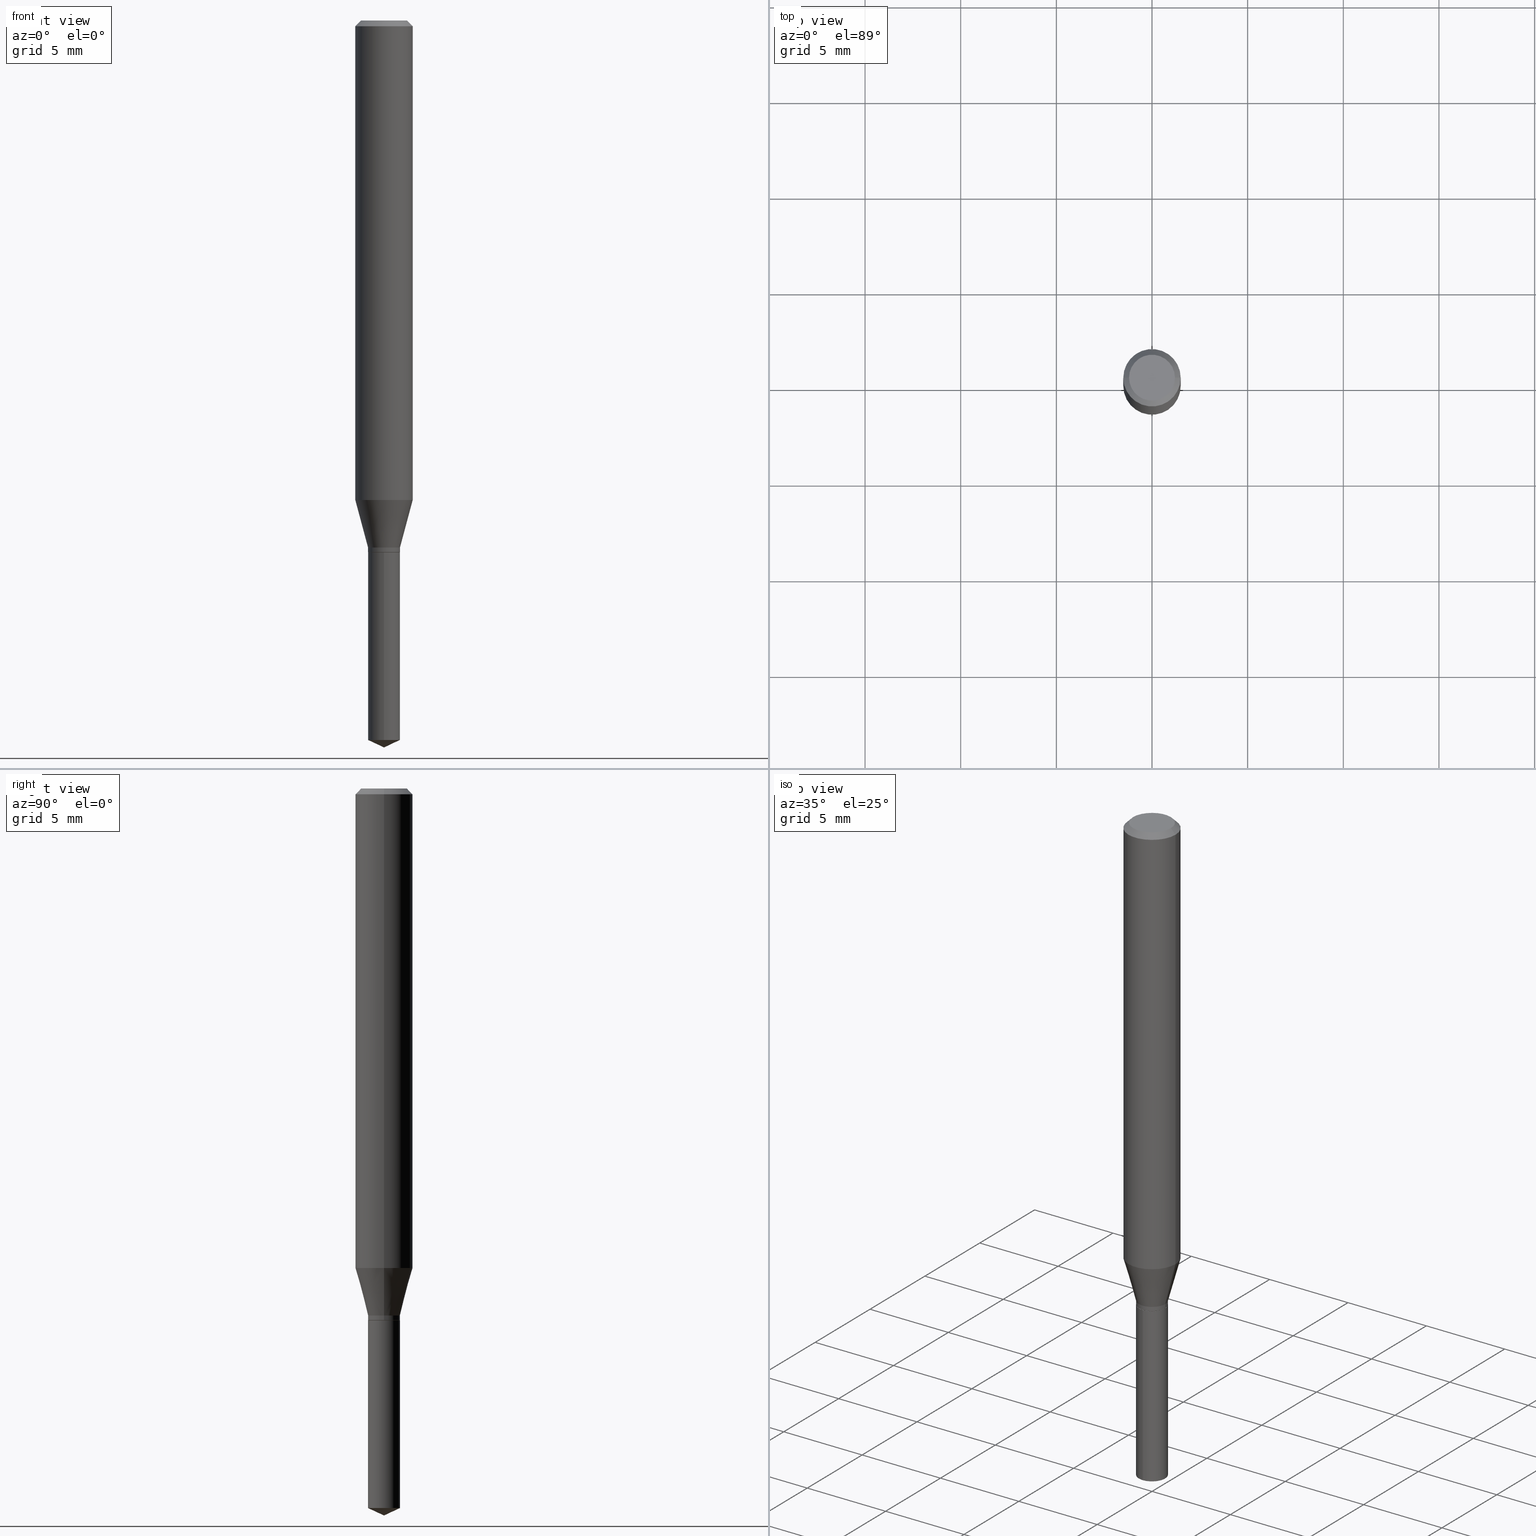
[diagram: canonical four-view strip — front | top / right | iso, engineering-drawing reading convention]
A machine part, canonical four-view strip (front | top / right | iso — engineering-drawing reading convention). The complete STEP part file that produces these views, byte-faithful:
ISO-10303-21;
HEADER;
FILE_DESCRIPTION (( 'STEP AP203' ),
    '1' );
FILE_NAME ('07561.STEP',
    '2024-04-23T22:58:41',
    ( '' ),
    ( '' ),
    'SwSTEP 2.0',
    'SolidWorks 2023',
    '' );
FILE_SCHEMA (( 'CONFIG_CONTROL_DESIGN' ));
ENDSEC;

DATA;
#1 = EDGE_CURVE ( 'NONE', #212, #290, #455, .T. ) ;
#2 = DIRECTION ( 'NONE',  ( 1.000000000000000000, -6.982962677686266711E-15, 4.876176775795935793E-29 ) ) ;
#3 = DIRECTION ( 'NONE',  ( 1.000000000000000000, -6.982962677686272233E-15, 0.000000000000000000 ) ) ;
#4 = CARTESIAN_POINT ( 'NONE',  ( -9.261968845786000133E-28, 1.322362114038720264E-13, 37.87397874015748300 ) ) ;
#5 = DIRECTION ( 'NONE',  ( 0.000000000000000000, 0.000000000000000000, 1.000000000000000000 ) ) ;
#6 = CARTESIAN_POINT ( 'NONE',  ( 0.000000000000000000, 0.000000000000000000, 0.000000000000000000 ) ) ;
#7 = AXIS2_PLACEMENT_3D ( 'NONE', #152, #329, #460 ) ;
#8 = DIRECTION ( 'NONE',  ( -2.445470214571802396E-29, 3.491479321953280158E-15, 1.000000000000000000 ) ) ;
#9 = DATE_AND_TIME ( #465, #24 ) ;
#10 = CC_DESIGN_PERSON_AND_ORGANIZATION_ASSIGNMENT ( #385, #190, ( #342 ) ) ;
#11 = CARTESIAN_POINT ( 'NONE',  ( 2.652355467188399034E-29, -3.786860660109275425E-15, -1.084600000000000009 ) ) ;
#12 = CARTESIAN_POINT ( 'NONE',  ( -0.05904999999999999832, -1.323773988566005771E-15, -0.01181000000000007218 ) ) ;
#13 = PLANE ( 'NONE',  #422 ) ;
#14 = LINE ( 'NONE', #320, #268 ) ;
#15 = FACE_OUTER_BOUND ( 'NONE', #134, .T. ) ;
#16 = VECTOR ( 'NONE', #467, 39.37007874015748143 ) ;
#17 = DIRECTION ( 'NONE',  ( 1.000000000000000000, -6.982962677686266711E-15, 4.876185090822587894E-29 ) ) ;
#18 = DIRECTION ( 'NONE',  ( 1.000000000000000000, -6.982962677686272233E-15, 0.000000000000000000 ) ) ;
#19 = EDGE_CURVE ( 'NONE', #105, #144, #183, .T. ) ;
#20 = PLANE ( 'NONE',  #220 ) ;
#21 = APPROVAL_ROLE ( '' ) ;
#22 = VERTEX_POINT ( 'NONE', #410 ) ;
#23 = VERTEX_POINT ( 'NONE', #332 ) ;
#24 = LOCAL_TIME ( 18, 58, 41.00000000000000000, #308 ) ;
#25 = EDGE_CURVE ( 'NONE', #66, #22, #411, .T. ) ;
#26 = VERTEX_POINT ( 'NONE', #106 ) ;
#27 = CARTESIAN_POINT ( 'NONE',  ( 2.888098660104664204E-31, -4.123439461173780263E-17, -0.01181000000000007218 ) ) ;
#28 = ORIENTED_EDGE ( 'NONE', *, *, #324, .F. ) ;
#29 = CLOSED_SHELL ( 'NONE', ( #350, #272, #234, #36, #447 ) ) ;
#30 = AXIS2_PLACEMENT_3D ( 'NONE', #97, #281, #82 ) ;
#31 = EDGE_LOOP ( 'NONE', ( #218, #375, #164 ) ) ;
#32 = EDGE_CURVE ( 'NONE', #166, #144, #306, .T. ) ;
#33 = ORIENTED_EDGE ( 'NONE', *, *, #303, .F. ) ;
#34 = EDGE_LOOP ( 'NONE', ( #451, #173 ) ) ;
#35 = VECTOR ( 'NONE', #424, 39.37007874015748143 ) ;
#36 = ADVANCED_FACE ( 'NONE', ( #415 ), #146, .T. ) ;
#37 = ORIENTED_EDGE ( 'NONE', *, *, #444, .F. ) ;
#38 = CARTESIAN_POINT ( 'NONE',  ( 2.334132886972290313E-16, 0.03284999999999482084, -1.480781793429608140 ) ) ;
#39 = PERSON ( 'UNSPECIFIED', 'UNSPECIFIED', 'UNSPECIFIED', ('UNSPECIFIED'), ('UNSPECIFIED'), ('UNSPECIFIED') ) ;
#40 = CARTESIAN_POINT ( 'NONE',  ( -9.261968845786000133E-28, 1.322362114038720264E-13, 37.87397874015748300 ) ) ;
#41 = PERSON_AND_ORGANIZATION ( #39, #108 ) ;
#42 = CARTESIAN_POINT ( 'NONE',  ( 0.03284999999999999726, -2.293903239619938520E-16, 1.601824070848965135E-30 ) ) ;
#43 = EDGE_CURVE ( 'NONE', #66, #371, #267, .T. ) ;
#44 = DIRECTION ( 'NONE',  ( 1.000000000000000000, -6.982962677686266711E-15, 0.000000000000000000 ) ) ;
#45 = DIRECTION ( 'NONE',  ( -2.445468806185136597E-29, 3.491481338843145583E-15, 1.000000000000000000 ) ) ;
#46 = AXIS2_PLACEMENT_3D ( 'NONE', #347, #151, #310 ) ;
#47 = SECURITY_CLASSIFICATION ( '', '', #476 ) ;
#48 = DIRECTION ( 'NONE',  ( -2.445468806185136597E-29, 3.491481338843145583E-15, 1.000000000000000000 ) ) ;
#49 = APPROVAL_DATE_TIME ( #83, #90 ) ;
#50 = DIRECTION ( 'NONE',  ( -2.445468806185136597E-29, 3.491481338843145583E-15, 1.000000000000000000 ) ) ;
#51 = ADVANCED_BREP_SHAPE_REPRESENTATION ( '07561', ( #244, #409, #262 ), #159 ) ;
#52 = FACE_OUTER_BOUND ( 'NONE', #285, .T. ) ;
#53 = FACE_OUTER_BOUND ( 'NONE', #250, .T. ) ;
#54 = CARTESIAN_POINT ( 'NONE',  ( 2.413238184763595651E-29, -3.445464553452954771E-15, -0.9868202688416950474 ) ) ;
#55 = CC_DESIGN_DATE_AND_TIME_ASSIGNMENT ( #436, #92, ( #47 ) ) ;
#56 = AXIS2_PLACEMENT_3D ( 'NONE', #125, #354, #87 ) ;
#57 = LINE ( 'NONE', #391, #339 ) ;
#58 = ORIENTED_EDGE ( 'NONE', *, *, #309, .F. ) ;
#59 = ORIENTED_EDGE ( 'NONE', *, *, #470, .F. ) ;
#60 = CC_DESIGN_PERSON_AND_ORGANIZATION_ASSIGNMENT ( #194, #287, ( #457 ) ) ;
#61 = EDGE_LOOP ( 'NONE', ( #334, #142, #404, #453 ) ) ;
#62 = AXIS2_PLACEMENT_3D ( 'NONE', #4, #216, #168 ) ;
#63 = ORIENTED_EDGE ( 'NONE', *, *, #297, .T. ) ;
#64 = ORIENTED_EDGE ( 'NONE', *, *, #408, .F. ) ;
#65 = DIRECTION ( 'NONE',  ( -6.982962677686267499E-15, -1.000000000000000000, 3.520397390770469253E-15 ) ) ;
#66 = VERTEX_POINT ( 'NONE', #38 ) ;
#67 = EDGE_CURVE ( 'NONE', #205, #290, #233, .T. ) ;
#68 = VECTOR ( 'NONE', #421, 39.37007874015748143 ) ;
#69 = CARTESIAN_POINT ( 'NONE',  ( 2.676565608369632355E-29, -3.821426325363822773E-15, -1.094500000000000028 ) ) ;
#70 = CARTESIAN_POINT ( 'NONE',  ( 0.05904999999999999832, -4.463468013801466955E-16, -0.01181000000000007218 ) ) ;
#71 = DIRECTION ( 'NONE',  ( -0.2588190451025211836, 5.211531920934547886E-15, 0.9659258262890679791 ) ) ;
#72 = ORIENTED_EDGE ( 'NONE', *, *, #1, .T. ) ;
#73 = ADVANCED_FACE ( 'NONE', ( #78 ), #13, .F. ) ;
#74 = EDGE_LOOP ( 'NONE', ( #328, #224, #446, #28 ) ) ;
#75 = VECTOR ( 'NONE', #490, 39.37007874015748143 ) ;
#76 = CIRCLE ( 'NONE', #441, 0.03284999999999999726 ) ;
#77 = DIRECTION ( 'NONE',  ( -2.445468806185136597E-29, 3.491481338843145583E-15, 1.000000000000000000 ) ) ;
#78 = FACE_OUTER_BOUND ( 'NONE', #34, .T. ) ;
#79 = DIRECTION ( 'NONE',  ( -2.445468806185136877E-29, 3.491481338843145188E-15, 1.000000000000000000 ) ) ;
#80 = DIRECTION ( 'NONE',  ( 2.438088387897960049E-29, -3.491481338843145188E-15, -1.000000000000000000 ) ) ;
#81 = APPROVAL_DATE_TIME ( #323, #461 ) ;
#82 = DIRECTION ( 'NONE',  ( -6.982962677686266711E-15, -1.000000000000000000, 4.158063917297204420E-15 ) ) ;
#83 = DATE_AND_TIME ( #428, #269 ) ;
#84 = CYLINDRICAL_SURFACE ( 'NONE', #473, 0.05905000000000006077 ) ;
#85 = AXIS2_PLACEMENT_3D ( 'NONE', #313, #45, #3 ) ;
#86 = CARTESIAN_POINT ( 'NONE',  ( -0.05904999999999999832, 3.711095515056362547E-16, -0.01181000000000007218 ) ) ;
#87 = DIRECTION ( 'NONE',  ( 1.000000000000000000, -6.982962677686273021E-15, 0.000000000000000000 ) ) ;
#88 = DIRECTION ( 'NONE',  ( 1.000000000000000000, -6.982962677686273021E-15, 0.000000000000000000 ) ) ;
#89 = APPROVAL_STATUS ( 'not_yet_approved' ) ;
#90 = APPROVAL ( #274, 'UNSPECIFIED' ) ;
#91 = DIRECTION ( 'NONE',  ( 1.000000000000000000, -6.982962677686273021E-15, 0.000000000000000000 ) ) ;
#92 = DATE_TIME_ROLE ( 'classification_date' ) ;
#93 = AXIS2_PLACEMENT_3D ( 'NONE', #187, #316, #118 ) ;
#94 = CIRCLE ( 'NONE', #340, 0.03234999999999999681 ) ;
#95 = ORIENTED_EDGE ( 'NONE', *, *, #252, .F. ) ;
#96 = LOCAL_TIME ( 18, 58, 41.00000000000000000, #284 ) ;
#97 = CARTESIAN_POINT ( 'NONE',  ( 2.676565608369631794E-29, -3.821426325363822773E-15, -1.094499999999999806 ) ) ;
#98 = ORIENTED_EDGE ( 'NONE', *, *, #365, .T. ) ;
#99 = ADVANCED_FACE ( 'NONE', ( #15 ), #393, .T. ) ;
#100 = ORIENTED_EDGE ( 'NONE', *, *, #25, .T. ) ;
#101 = ORIENTED_EDGE ( 'NONE', *, *, #67, .T. ) ;
#102 = VERTEX_POINT ( 'NONE', #121 ) ;
#103 = APPLICATION_CONTEXT ( 'configuration controlled 3d designs of mechanical parts and assemblies' ) ;
#104 = ADVANCED_FACE ( 'NONE', ( #227 ), #277, .T. ) ;
#105 = VERTEX_POINT ( 'NONE', #357 ) ;
#106 = CARTESIAN_POINT ( 'NONE',  ( -0.04724000000000000421, 3.504923541997677355E-16, -3.380025165670481712E-19 ) ) ;
#107 = VECTOR ( 'NONE', #79, 39.37007874015748143 ) ;
#108 = ORGANIZATION ( 'UNSPECIFIED', 'UNSPECIFIED', '' ) ;
#109 = DIRECTION ( 'NONE',  ( -6.982962677686266711E-15, -1.000000000000000000, 4.158063917297204420E-15 ) ) ;
#110 = PRODUCT_DEFINITION ( 'UNKNOWN', '', #457, #215 ) ;
#111 = ORIENTED_EDGE ( 'NONE', *, *, #43, .T. ) ;
#112 =( NAMED_UNIT ( * ) SI_UNIT ( $, .STERADIAN. ) SOLID_ANGLE_UNIT ( ) );
#113 = DIRECTION ( 'NONE',  ( 1.000000000000000000, -6.982962677686265922E-15, 4.876176775795935793E-29 ) ) ;
#114 = AXIS2_PLACEMENT_3D ( 'NONE', #317, #437, #91 ) ;
#115 = FACE_OUTER_BOUND ( 'NONE', #214, .T. ) ;
#116 = LINE ( 'NONE', #221, #107 ) ;
#117 = CARTESIAN_POINT ( 'NONE',  ( -0.03284999999999999726, 2.334132886971928916E-16, -1.615870177148736620E-30 ) ) ;
#118 = DIRECTION ( 'NONE',  ( 1.000000000000000000, -6.982962677686266711E-15, 4.876176775795936914E-29 ) ) ;
#119 = DIRECTION ( 'NONE',  ( -6.982962677686266711E-15, -1.000000000000000000, 0.000000000000000000 ) ) ;
#120 = LENGTH_MEASURE_WITH_UNIT ( LENGTH_MEASURE( 0.02539999999999999897 ), #232 );
#121 = CARTESIAN_POINT ( 'NONE',  ( -0.03284999999999999726, -3.569857333704645111E-15, -1.084600000000000009 ) ) ;
#122 = CARTESIAN_POINT ( 'NONE',  ( 2.413238184763595651E-29, -3.445464553452954771E-15, -0.9868202688416950474 ) ) ;
#123 = CARTESIAN_POINT ( 'NONE',  ( 0.000000000000000000, 0.000000000000000000, 0.000000000000000000 ) ) ;
#124 = VECTOR ( 'NONE', #180, 39.37007874015748143 ) ;
#125 = CARTESIAN_POINT ( 'NONE',  ( 2.652355467188399034E-29, -3.786860660109275425E-15, -1.084600000000000009 ) ) ;
#126 = CIRCLE ( 'NONE', #30, 0.03284999999999999726 ) ;
#127 = CIRCLE ( 'NONE', #414, 0.05904999999999999832 ) ;
#128 = CARTESIAN_POINT ( 'NONE',  ( -2.293903239619575644E-16, -0.03285000000000516673, -1.480781793429608140 ) ) ;
#129 = CARTESIAN_POINT ( 'NONE',  ( 2.888098660104664204E-31, -4.123439461173780263E-17, -0.01181000000000007218 ) ) ;
#130 = FACE_OUTER_BOUND ( 'NONE', #137, .T. ) ;
#131 = ADVANCED_FACE ( 'NONE', ( #271 ), #304, .F. ) ;
#132 = VECTOR ( 'NONE', #71, 39.37007874015748854 ) ;
#133 = AXIS2_PLACEMENT_3D ( 'NONE', #439, #474, #119 ) ;
#134 = EDGE_LOOP ( 'NONE', ( #210, #179, #261, #165 ) ) ;
#135 = ORIENTED_EDGE ( 'NONE', *, *, #252, .T. ) ;
#136 = DIRECTION ( 'NONE',  ( 1.000000000000000000, -6.982962677686266711E-15, 0.000000000000000000 ) ) ;
#137 = EDGE_LOOP ( 'NONE', ( #59, #72, #63, #251 ) ) ;
#138 = CIRCLE ( 'NONE', #211, 0.05904999999999999832 ) ;
#139 = CC_DESIGN_PERSON_AND_ORGANIZATION_ASSIGNMENT ( #282, #438, ( #47 ) ) ;
#140 = ORIENTED_EDGE ( 'NONE', *, *, #417, .T. ) ;
#141 = DIRECTION ( 'NONE',  ( -6.982962677686266711E-15, -1.000000000000000000, 4.158063917297204420E-15 ) ) ;
#142 = ORIENTED_EDGE ( 'NONE', *, *, #226, .T. ) ;
#143 = APPROVAL ( #184, 'UNSPECIFIED' ) ;
#144 = VERTEX_POINT ( 'NONE', #192 ) ;
#145 = CIRCLE ( 'NONE', #464, 0.05905000000000011628 ) ;
#146 = CYLINDRICAL_SURFACE ( 'NONE', #209, 0.03284999999999999726 ) ;
#147 = ORIENTED_EDGE ( 'NONE', *, *, #365, .F. ) ;
#148 = FACE_OUTER_BOUND ( 'NONE', #486, .T. ) ;
#149 = EDGE_CURVE ( 'NONE', #294, #102, #440, .T. ) ;
#150 = CLOSED_SHELL ( 'NONE', ( #104, #454, #195, #381, #99, #177, #319, #484, #219, #73, #131, #333 ) ) ;
#151 = DIRECTION ( 'NONE',  ( 2.445468806185136597E-29, -3.491481338843145583E-15, -1.000000000000000000 ) ) ;
#152 = CARTESIAN_POINT ( 'NONE',  ( 2.888098660104664204E-31, -4.123439461173780263E-17, -0.01181000000000007218 ) ) ;
#153 = DATE_TIME_ROLE ( 'creation_date' ) ;
#154 = DIRECTION ( 'NONE',  ( 1.000000000000000000, -6.982962677686273021E-15, 0.000000000000000000 ) ) ;
#155 = FACE_OUTER_BOUND ( 'NONE', #61, .T. ) ;
#156 = DIRECTION ( 'NONE',  ( -2.445468806185136877E-29, 3.491481338843145188E-15, 1.000000000000000000 ) ) ;
#157 = EDGE_CURVE ( 'NONE', #294, #205, #275, .T. ) ;
#158 = CARTESIAN_POINT ( 'NONE',  ( 2.675342873966538993E-29, -3.819680584694400481E-15, -1.093999999999999861 ) ) ;
#159 =( GEOMETRIC_REPRESENTATION_CONTEXT ( 3 ) GLOBAL_UNCERTAINTY_ASSIGNED_CONTEXT ( ( #167 ) ) GLOBAL_UNIT_ASSIGNED_CONTEXT ( ( #346, #241, #112 ) ) REPRESENTATION_CONTEXT ( 'NONE', 'WORKASPACE' ) );
#160 = APPROVAL_PERSON_ORGANIZATION ( #246, #461, #21 ) ;
#161 = DIRECTION ( 'NONE',  ( 1.000000000000000000, -6.982962677686272233E-15, 0.000000000000000000 ) ) ;
#162 = CARTESIAN_POINT ( 'NONE',  ( 2.676565608369631794E-29, -3.821426325363822773E-15, -1.094499999999999806 ) ) ;
#163 = COORDINATED_UNIVERSAL_TIME_OFFSET ( 5, 0, .BEHIND. ) ;
#164 = ORIENTED_EDGE ( 'NONE', *, *, #43, .F. ) ;
#165 = ORIENTED_EDGE ( 'NONE', *, *, #213, .F. ) ;
#166 = VERTEX_POINT ( 'NONE', #399 ) ;
#167 = UNCERTAINTY_MEASURE_WITH_UNIT (LENGTH_MEASURE( 1.000000000000000082E-05 ), #346, 'distance_accuracy_value', 'NONE');
#168 = DIRECTION ( 'NONE',  ( -6.982962677686267499E-15, -1.000000000000000000, 3.520397390770469253E-15 ) ) ;
#169 = ORIENTED_EDGE ( 'NONE', *, *, #309, .T. ) ;
#170 = CC_DESIGN_PERSON_AND_ORGANIZATION_ASSIGNMENT ( #41, #186, ( #110 ) ) ;
#171 = DIRECTION ( 'NONE',  ( -2.445468806185136597E-29, 3.491481338843145583E-15, 1.000000000000000000 ) ) ;
#172 = PRODUCT_DEFINITION_SHAPE ( 'NONE', 'NONE',  #110 ) ;
#173 = ORIENTED_EDGE ( 'NONE', *, *, #470, .T. ) ;
#174 = AXIS2_PLACEMENT_3D ( 'NONE', #471, #48, #273 ) ;
#175 = CARTESIAN_POINT ( 'NONE',  ( 2.676565608369631794E-29, -3.821426325363822773E-15, -1.094499999999999806 ) ) ;
#176 = ORIENTED_EDGE ( 'NONE', *, *, #358, .F. ) ;
#177 = ADVANCED_FACE ( 'NONE', ( #148 ), #196, .T. ) ;
#178 = ORIENTED_EDGE ( 'NONE', *, *, #297, .F. ) ;
#179 = ORIENTED_EDGE ( 'NONE', *, *, #479, .T. ) ;
#180 = DIRECTION ( 'NONE',  ( -0.7071067811864267805, 7.493145998869918709E-15, 0.7071067811866682540 ) ) ;
#181 = AXIS2_PLACEMENT_3D ( 'NONE', #11, #230, #154 ) ;
#182 = AXIS2_PLACEMENT_3D ( 'NONE', #450, #295, #298 ) ;
#183 = LINE ( 'NONE', #299, #124 ) ;
#184 = APPROVAL_STATUS ( 'not_yet_approved' ) ;
#185 = DIRECTION ( 'NONE',  ( -2.445470214571802116E-29, 3.491479321953280158E-15, 1.000000000000000000 ) ) ;
#186 = PERSON_AND_ORGANIZATION_ROLE ( 'creator' ) ;
#187 = CARTESIAN_POINT ( 'NONE',  ( 0.000000000000000000, 0.000000000000000000, 0.000000000000000000 ) ) ;
#188 = DIRECTION ( 'NONE',  ( 6.439704144417024831E-15, 0.9063077870366513800, 0.4226182617406963327 ) ) ;
#189 = CONICAL_SURFACE ( 'NONE', #46, 0.05904999999999999832, 0.7853981633974452814 ) ;
#190 = PERSON_AND_ORGANIZATION_ROLE ( 'design_owner' ) ;
#191 = AXIS2_PLACEMENT_3D ( 'NONE', #54, #355, #349 ) ;
#192 = CARTESIAN_POINT ( 'NONE',  ( -0.03284999999999999726, -3.569857333704645111E-15, -1.093999999999999861 ) ) ;
#193 = FACE_OUTER_BOUND ( 'NONE', #366, .T. ) ;
#194 = PERSON_AND_ORGANIZATION ( #39, #108 ) ;
#195 = ADVANCED_FACE ( 'NONE', ( #472 ), #84, .T. ) ;
#196 = CYLINDRICAL_SURFACE ( 'NONE', #338, 0.03284999999999999726 ) ;
#197 = CARTESIAN_POINT ( 'NONE',  ( 2.676565608369631794E-29, -3.821426325363822773E-15, -1.094499999999999806 ) ) ;
#198 = APPLICATION_PROTOCOL_DEFINITION ( 'international standard', 'config_control_design', 1994, #265 ) ;
#199 = DIRECTION ( 'NONE',  ( -2.445470214571802116E-29, 3.491479321953280158E-15, 1.000000000000000000 ) ) ;
#200 = DIMENSIONAL_EXPONENTS ( 1.000000000000000000, 0.000000000000000000, 0.000000000000000000, 0.000000000000000000, 0.000000000000000000, 0.000000000000000000, 0.000000000000000000 ) ;
#201 = CARTESIAN_POINT ( 'NONE',  ( 0.03234999999999999681, -4.047325167986974013E-15, -1.094500000000000028 ) ) ;
#202 = APPROVAL_PERSON_ORGANIZATION ( #356, #143, #270 ) ;
#203 = FACE_OUTER_BOUND ( 'NONE', #407, .T. ) ;
#204 = PERSON_AND_ORGANIZATION ( #39, #108 ) ;
#205 = VERTEX_POINT ( 'NONE', #389 ) ;
#206 = EDGE_CURVE ( 'NONE', #102, #294, #253, .T. ) ;
#207 = EDGE_LOOP ( 'NONE', ( #485, #111, #489, #147 ) ) ;
#208 = ORIENTED_EDGE ( 'NONE', *, *, #358, .T. ) ;
#209 = AXIS2_PLACEMENT_3D ( 'NONE', #296, #456, #109 ) ;
#210 = ORIENTED_EDGE ( 'NONE', *, *, #32, .T. ) ;
#211 = AXIS2_PLACEMENT_3D ( 'NONE', #27, #171, #136 ) ;
#212 = VERTEX_POINT ( 'NONE', #266 ) ;
#213 = EDGE_CURVE ( 'NONE', #166, #294, #242, .T. ) ;
#214 = EDGE_LOOP ( 'NONE', ( #383, #33, #418, #327 ) ) ;
#215 = DESIGN_CONTEXT ( 'detailed design', #265, 'design' ) ;
#216 = DIRECTION ( 'NONE',  ( -2.445470214571802116E-29, 3.491479321953280158E-15, 1.000000000000000000 ) ) ;
#217 = CARTESIAN_POINT ( 'NONE',  ( 2.675342873966538993E-29, -3.819680584694400481E-15, -1.093999999999999861 ) ) ;
#218 = ORIENTED_EDGE ( 'NONE', *, *, #417, .F. ) ;
#219 = ADVANCED_FACE ( 'NONE', ( #115 ), #189, .T. ) ;
#220 = AXIS2_PLACEMENT_3D ( 'NONE', #162, #322, #311 ) ;
#221 = CARTESIAN_POINT ( 'NONE',  ( -0.05905000000000006077, 4.195754854663395916E-16, -2.904631170795524694E-30 ) ) ;
#222 = ORIENTED_EDGE ( 'NONE', *, *, #248, .T. ) ;
#223 = ORIENTED_EDGE ( 'NONE', *, *, #206, .T. ) ;
#224 = ORIENTED_EDGE ( 'NONE', *, *, #19, .T. ) ;
#225 = CIRCLE ( 'NONE', #449, 0.03234999999999999681 ) ;
#226 = EDGE_CURVE ( 'NONE', #102, #258, #466, .T. ) ;
#227 = FACE_OUTER_BOUND ( 'NONE', #74, .T. ) ;
#228 = FACE_OUTER_BOUND ( 'NONE', #31, .T. ) ;
#229 = DATE_AND_TIME ( #351, #482 ) ;
#230 = DIRECTION ( 'NONE',  ( -2.445468806185136597E-29, 3.491481338843145583E-15, 1.000000000000000000 ) ) ;
#231 = DIRECTION ( 'NONE',  ( -2.445470214571802116E-29, 3.491479321953280158E-15, 1.000000000000000000 ) ) ;
#232 =( LENGTH_UNIT ( ) NAMED_UNIT ( * ) SI_UNIT ( $, .METRE. ) );
#233 = LINE ( 'NONE', #434, #361 ) ;
#234 = ADVANCED_FACE ( 'NONE', ( #228 ), #331, .T. ) ;
#235 = CARTESIAN_POINT ( 'NONE',  ( 2.652355467188399034E-29, -3.786860660109275425E-15, -1.084600000000000009 ) ) ;
#236 = VECTOR ( 'NONE', #260, 39.37007874015748143 ) ;
#237 = APPROVAL_ROLE ( '' ) ;
#238 = CC_DESIGN_APPROVAL ( #143, ( #110 ) ) ;
#239 = DIRECTION ( 'NONE',  ( -2.445468806185136597E-29, 3.491481338843145583E-15, 1.000000000000000000 ) ) ;
#240 = DIRECTION ( 'NONE',  ( -0.7071067811865453523, 2.468850131082234184E-15, -0.7071067811865496822 ) ) ;
#241 =( NAMED_UNIT ( * ) PLANE_ANGLE_UNIT ( ) SI_UNIT ( $, .RADIAN. ) );
#242 = LINE ( 'NONE', #42, #68 ) ;
#243 = CARTESIAN_POINT ( 'NONE',  ( 3.658664905062460986E-29, -5.223606628546217219E-15, -1.496099999999999985 ) ) ;
#244 = MANIFOLD_SOLID_BREP ( 'Body-Move/Copy2[1]', #29 ) ;
#245 = CARTESIAN_POINT ( 'NONE',  ( 2.676565608369632355E-29, -3.821426325363822773E-15, -1.094500000000000028 ) ) ;
#246 = PERSON_AND_ORGANIZATION ( #39, #108 ) ;
#247 = CIRCLE ( 'NONE', #133, 0.03284999999999999726 ) ;
#248 = EDGE_CURVE ( 'NONE', #258, #373, #116, .T. ) ;
#249 = ORIENTED_EDGE ( 'NONE', *, *, #324, .T. ) ;
#250 = EDGE_LOOP ( 'NONE', ( #481, #380, #101, #382 ) ) ;
#251 = ORIENTED_EDGE ( 'NONE', *, *, #390, .F. ) ;
#252 = EDGE_CURVE ( 'NONE', #302, #22, #301, .T. ) ;
#253 = CIRCLE ( 'NONE', #56, 0.03284999999999999726 ) ;
#254 = CONICAL_SURFACE ( 'NONE', #7, 0.05904999999999999832, 0.7853981633974452814 ) ;
#255 = CC_DESIGN_APPROVAL ( #461, ( #47 ) ) ;
#256 = ORIENTED_EDGE ( 'NONE', *, *, #19, .F. ) ;
#257 = EDGE_LOOP ( 'NONE', ( #335, #223, #367, #64 ) ) ;
#258 = VERTEX_POINT ( 'NONE', #259 ) ;
#259 = CARTESIAN_POINT ( 'NONE',  ( -0.05905000000000011628, -3.025889067986614883E-15, -0.9868202688416950474 ) ) ;
#260 = DIRECTION ( 'NONE',  ( 0.7071067811865453523, -7.319954787623248157E-15, -0.7071067811865496822 ) ) ;
#261 = ORIENTED_EDGE ( 'NONE', *, *, #149, .F. ) ;
#262 = AXIS2_PLACEMENT_3D ( 'NONE', #420, #5, #315 ) ;
#263 = ORIENTED_EDGE ( 'NONE', *, *, #425, .T. ) ;
#264 = ORIENTED_EDGE ( 'NONE', *, *, #398, .F. ) ;
#265 = APPLICATION_CONTEXT ( 'configuration controlled 3d designs of mechanical parts and assemblies' ) ;
#266 = CARTESIAN_POINT ( 'NONE',  ( 0.04724000000000000421, -3.852183633974369345E-16, -3.380025165621689721E-19 ) ) ;
#267 = CIRCLE ( 'NONE', #405, 0.03284999999999999726 ) ;
#268 = VECTOR ( 'NONE', #188, 39.37007874015748854 ) ;
#269 = LOCAL_TIME ( 18, 58, 41.00000000000000000, #468 ) ;
#270 = APPROVAL_ROLE ( '' ) ;
#271 = FACE_OUTER_BOUND ( 'NONE', #452, .T. ) ;
#272 = ADVANCED_FACE ( 'NONE', ( #345 ), #348, .T. ) ;
#273 = DIRECTION ( 'NONE',  ( 1.000000000000000000, -6.982962677686272233E-15, 0.000000000000000000 ) ) ;
#274 = APPROVAL_STATUS ( 'not_yet_approved' ) ;
#275 = LINE ( 'NONE', #386, #288 ) ;
#276 = DIRECTION ( 'NONE',  ( -2.445468806185136597E-29, 3.491481338843145583E-15, 1.000000000000000000 ) ) ;
#277 = CONICAL_SURFACE ( 'NONE', #85, 0.03234999999999999681, 0.7853981633972775267 ) ;
#278 = COORDINATED_UNIVERSAL_TIME_OFFSET ( 5, 0, .BEHIND. ) ;
#279 = CIRCLE ( 'NONE', #182, 0.04724000000000000421 ) ;
#280 = CARTESIAN_POINT ( 'NONE',  ( 4.132873053354867254E-48, -5.900647395337818946E-34, -1.690012582823346072E-19 ) ) ;
#281 = DIRECTION ( 'NONE',  ( -2.445470214571802116E-29, 3.491479321953280158E-15, 1.000000000000000000 ) ) ;
#282 = PERSON_AND_ORGANIZATION ( #39, #108 ) ;
#283 = LINE ( 'NONE', #86, #487 ) ;
#284 = COORDINATED_UNIVERSAL_TIME_OFFSET ( 5, 0, .BEHIND. ) ;
#285 = EDGE_LOOP ( 'NONE', ( #208, #100, #95, #37 ) ) ;
#286 = LINE ( 'NONE', #201, #16 ) ;
#287 = PERSON_AND_ORGANIZATION_ROLE ( 'creator' ) ;
#288 = VECTOR ( 'NONE', #429, 39.37007874015748854 ) ;
#289 = CIRCLE ( 'NONE', #406, 0.04724000000000000421 ) ;
#290 = VERTEX_POINT ( 'NONE', #372 ) ;
#291 = CC_DESIGN_PERSON_AND_ORGANIZATION_ASSIGNMENT ( #204, #362, ( #457 ) ) ;
#292 = DIRECTION ( 'NONE',  ( -2.445468806185136597E-29, 3.491481338843145583E-15, 1.000000000000000000 ) ) ;
#293 = CIRCLE ( 'NONE', #191, 0.05905000000000011628 ) ;
#294 = VERTEX_POINT ( 'NONE', #412 ) ;
#295 = DIRECTION ( 'NONE',  ( -2.445468806185136597E-29, 3.491481338843145583E-15, 1.000000000000000000 ) ) ;
#296 = CARTESIAN_POINT ( 'NONE',  ( 2.676565608369631794E-29, -3.821426325363822773E-15, -1.094499999999999806 ) ) ;
#297 = EDGE_CURVE ( 'NONE', #290, #373, #138, .T. ) ;
#298 = DIRECTION ( 'NONE',  ( 1.000000000000000000, -6.982962677686266711E-15, 4.876185090822587894E-29 ) ) ;
#299 = CARTESIAN_POINT ( 'NONE',  ( -0.03234999999999999681, -3.591565750345430435E-15, -1.094500000000000028 ) ) ;
#300 = EDGE_LOOP ( 'NONE', ( #445, #222, #178, #377 ) ) ;
#301 = CIRCLE ( 'NONE', #394, 0.03284999999999999726 ) ;
#302 = VERTEX_POINT ( 'NONE', #330 ) ;
#303 = EDGE_CURVE ( 'NONE', #26, #212, #279, .T. ) ;
#304 = PLANE ( 'NONE',  #413 ) ;
#305 = SHAPE_DEFINITION_REPRESENTATION ( #172, #51 ) ;
#306 = CIRCLE ( 'NONE', #448, 0.03284999999999999726 ) ;
#307 = APPROVAL_PERSON_ORGANIZATION ( #312, #90, #237 ) ;
#308 = COORDINATED_UNIVERSAL_TIME_OFFSET ( 5, 0, .BEHIND. ) ;
#309 = EDGE_CURVE ( 'NONE', #105, #23, #225, .T. ) ;
#310 = DIRECTION ( 'NONE',  ( -1.000000000000000000, 6.982962677686266711E-15, 0.000000000000000000 ) ) ;
#311 = DIRECTION ( 'NONE',  ( 6.982962677686265922E-15, 1.000000000000000000, -3.491479321953280158E-15 ) ) ;
#312 = PERSON_AND_ORGANIZATION ( #39, #108 ) ;
#313 = CARTESIAN_POINT ( 'NONE',  ( 2.676565608369632355E-29, -3.821426325363822773E-15, -1.094500000000000028 ) ) ;
#314 = DIRECTION ( 'NONE',  ( -2.445470214571802116E-29, 3.491479321953280158E-15, 1.000000000000000000 ) ) ;
#315 = DIRECTION ( 'NONE',  ( 1.000000000000000000, 0.000000000000000000, 0.000000000000000000 ) ) ;
#316 = DIRECTION ( 'NONE',  ( -2.445468806185136597E-29, 3.491481338843145583E-15, 1.000000000000000000 ) ) ;
#317 = CARTESIAN_POINT ( 'NONE',  ( 2.652355467188399034E-29, -3.786860660109275425E-15, -1.084600000000000009 ) ) ;
#318 = VECTOR ( 'NONE', #363, 39.37007874015748143 ) ;
#319 = ADVANCED_FACE ( 'NONE', ( #395 ), #402, .T. ) ;
#320 = CARTESIAN_POINT ( 'NONE',  ( 3.658668015054778287E-29, -5.223602213574301462E-15, -1.496099999999999985 ) ) ;
#321 = ORIENTED_EDGE ( 'NONE', *, *, #213, .T. ) ;
#322 = DIRECTION ( 'NONE',  ( 2.445470214571801836E-29, -3.491479321953280158E-15, -1.000000000000000000 ) ) ;
#323 = DATE_AND_TIME ( #478, #443 ) ;
#324 = EDGE_CURVE ( 'NONE', #23, #166, #286, .T. ) ;
#325 = AXIS2_PLACEMENT_3D ( 'NONE', #197, #314, #432 ) ;
#326 = CC_DESIGN_APPROVAL ( #90, ( #457 ) ) ;
#327 = ORIENTED_EDGE ( 'NONE', *, *, #430, .T. ) ;
#328 = ORIENTED_EDGE ( 'NONE', *, *, #403, .T. ) ;
#329 = DIRECTION ( 'NONE',  ( 2.445468806185136597E-29, -3.491481338843145583E-15, -1.000000000000000000 ) ) ;
#330 = CARTESIAN_POINT ( 'NONE',  ( -2.293903239619670800E-16, -0.03285000000000382059, -1.094499999999999806 ) ) ;
#331 = CONICAL_SURFACE ( 'NONE', #376, 84.42940631927396566, 1.134464013796314230 ) ;
#332 = CARTESIAN_POINT ( 'NONE',  ( 0.03234999999999999681, -4.047325167986974013E-15, -1.094500000000000028 ) ) ;
#333 = ADVANCED_FACE ( 'NONE', ( #193 ), #368, .T. ) ;
#334 = ORIENTED_EDGE ( 'NONE', *, *, #149, .T. ) ;
#335 = ORIENTED_EDGE ( 'NONE', *, *, #226, .F. ) ;
#336 = EDGE_CURVE ( 'NONE', #205, #258, #145, .T. ) ;
#337 = DIRECTION ( 'NONE',  ( -2.445468806185136597E-29, 3.491481338843145583E-15, 1.000000000000000000 ) ) ;
#338 = AXIS2_PLACEMENT_3D ( 'NONE', #6, #239, #469 ) ;
#339 = VECTOR ( 'NONE', #8, 39.37007874015748143 ) ;
#340 = AXIS2_PLACEMENT_3D ( 'NONE', #245, #400, #161 ) ;
#341 = ORIENTED_EDGE ( 'NONE', *, *, #403, .F. ) ;
#342 = PRODUCT ( '07561', '07561', '', ( #433 ) ) ;
#343 = CYLINDRICAL_SURFACE ( 'NONE', #384, 0.05905000000000006077 ) ;
#344 = DIRECTION ( 'NONE',  ( -1.000000000000000000, 6.982962677686265922E-15, -4.876176775795935793E-29 ) ) ;
#345 = FACE_OUTER_BOUND ( 'NONE', #419, .T. ) ;
#346 =( CONVERSION_BASED_UNIT ( 'INCH', #120 ) LENGTH_UNIT ( ) NAMED_UNIT ( #200 ) );
#347 = CARTESIAN_POINT ( 'NONE',  ( 2.888098660104664204E-31, -4.123439461173780263E-17, -0.01181000000000007218 ) ) ;
#348 = CONICAL_SURFACE ( 'NONE', #62, 84.42940631927396566, 1.134464013796314230 ) ;
#349 = DIRECTION ( 'NONE',  ( 1.000000000000000000, -6.982962677686266711E-15, 0.000000000000000000 ) ) ;
#350 = ADVANCED_FACE ( 'NONE', ( #52 ), #435, .T. ) ;
#351 = CALENDAR_DATE ( 2024, 23, 4 ) ;
#352 = DIRECTION ( 'NONE',  ( -6.982962677686266711E-15, -1.000000000000000000, 0.000000000000000000 ) ) ;
#353 = DIRECTION ( 'NONE',  ( -2.445468806185136597E-29, 3.491481338843145583E-15, 1.000000000000000000 ) ) ;
#354 = DIRECTION ( 'NONE',  ( -2.445468806185136597E-29, 3.491481338843145583E-15, 1.000000000000000000 ) ) ;
#355 = DIRECTION ( 'NONE',  ( -2.445468806185136597E-29, 3.491481338843145583E-15, 1.000000000000000000 ) ) ;
#356 = PERSON_AND_ORGANIZATION ( #39, #108 ) ;
#357 = CARTESIAN_POINT ( 'NONE',  ( -0.03234999999999999681, -3.588916523171319234E-15, -1.094500000000000028 ) ) ;
#358 = EDGE_CURVE ( 'NONE', #371, #66, #247, .T. ) ;
#359 = CARTESIAN_POINT ( 'NONE',  ( 8.265746106709734507E-48, -1.180129479067563789E-33, -3.380025165646692144E-19 ) ) ;
#360 = LINE ( 'NONE', #243, #318 ) ;
#361 = VECTOR ( 'NONE', #156, 39.37007874015748143 ) ;
#362 = PERSON_AND_ORGANIZATION_ROLE ( 'design_supplier' ) ;
#363 = DIRECTION ( 'NONE',  ( -6.328713451373368590E-15, -0.9063077870366484934, 0.4226182617407026054 ) ) ;
#364 = ORIENTED_EDGE ( 'NONE', *, *, #425, .F. ) ;
#365 = EDGE_CURVE ( 'NONE', #22, #302, #126, .T. ) ;
#366 = EDGE_LOOP ( 'NONE', ( #256, #169, #249, #364 ) ) ;
#367 = ORIENTED_EDGE ( 'NONE', *, *, #157, .T. ) ;
#368 = CONICAL_SURFACE ( 'NONE', #174, 0.03234999999999999681, 0.7853981633972775267 ) ;
#369 = ORIENTED_EDGE ( 'NONE', *, *, #479, .F. ) ;
#370 = ORIENTED_EDGE ( 'NONE', *, *, #206, .F. ) ;
#371 = VERTEX_POINT ( 'NONE', #128 ) ;
#372 = CARTESIAN_POINT ( 'NONE',  ( 0.05904999999999999832, -4.535783407291118600E-16, -0.01181000000000007218 ) ) ;
#373 = VERTEX_POINT ( 'NONE', #12 ) ;
#374 = PRODUCT_RELATED_PRODUCT_CATEGORY ( 'detail', '', ( #342 ) ) ;
#375 = ORIENTED_EDGE ( 'NONE', *, *, #398, .T. ) ;
#376 = AXIS2_PLACEMENT_3D ( 'NONE', #40, #185, #65 ) ;
#377 = ORIENTED_EDGE ( 'NONE', *, *, #67, .F. ) ;
#378 = DIRECTION ( 'NONE',  ( -2.445468806185136597E-29, 3.491481338843145583E-15, 1.000000000000000000 ) ) ;
#379 = VERTEX_POINT ( 'NONE', #397 ) ;
#380 = ORIENTED_EDGE ( 'NONE', *, *, #408, .T. ) ;
#381 = ADVANCED_FACE ( 'NONE', ( #155 ), #423, .T. ) ;
#382 = ORIENTED_EDGE ( 'NONE', *, *, #430, .F. ) ;
#383 = ORIENTED_EDGE ( 'NONE', *, *, #1, .F. ) ;
#384 = AXIS2_PLACEMENT_3D ( 'NONE', #123, #77, #2 ) ;
#385 = PERSON_AND_ORGANIZATION ( #39, #108 ) ;
#386 = CARTESIAN_POINT ( 'NONE',  ( 0.03284999999999999726, -4.016250984071269671E-15, -1.084600000000000009 ) ) ;
#387 = CARTESIAN_POINT ( 'NONE',  ( -0.03284999999999999726, -3.553447371412082977E-15, -1.084600000000000009 ) ) ;
#388 = APPROVAL_DATE_TIME ( #229, #143 ) ;
#389 = CARTESIAN_POINT ( 'NONE',  ( 0.05905000000000011628, -3.857808499570329297E-15, -0.9868202688416950474 ) ) ;
#390 = EDGE_CURVE ( 'NONE', #26, #373, #283, .T. ) ;
#391 = CARTESIAN_POINT ( 'NONE',  ( -2.293903239619670800E-16, -0.03285000000000382059, -1.094499999999999806 ) ) ;
#392 = APPLICATION_PROTOCOL_DEFINITION ( 'international standard', 'config_control_design', 1994, #103 ) ;
#393 = CYLINDRICAL_SURFACE ( 'NONE', #93, 0.03284999999999999726 ) ;
#394 = AXIS2_PLACEMENT_3D ( 'NONE', #175, #231, #141 ) ;
#395 = FACE_OUTER_BOUND ( 'NONE', #257, .T. ) ;
#396 = CARTESIAN_POINT ( 'NONE',  ( 0.000000000000000000, 0.000000000000000000, 0.000000000000000000 ) ) ;
#397 = CARTESIAN_POINT ( 'NONE',  ( 3.658667988020872822E-29, -5.223602213574301462E-15, -1.496099999999999985 ) ) ;
#398 = EDGE_CURVE ( 'NONE', #379, #371, #360, .T. ) ;
#399 = CARTESIAN_POINT ( 'NONE',  ( 0.03284999999999999726, -4.049070908656394727E-15, -1.093999999999999861 ) ) ;
#400 = DIRECTION ( 'NONE',  ( -2.445468806185136597E-29, 3.491481338843145583E-15, 1.000000000000000000 ) ) ;
#401 = DIRECTION ( 'NONE',  ( -2.445468806185136597E-29, 3.491481338843145583E-15, 1.000000000000000000 ) ) ;
#402 = CONICAL_SURFACE ( 'NONE', #114, 0.03284999999999999726, 0.2617993877991499074 ) ;
#403 = EDGE_CURVE ( 'NONE', #23, #105, #94, .T. ) ;
#404 = ORIENTED_EDGE ( 'NONE', *, *, #336, .F. ) ;
#405 = AXIS2_PLACEMENT_3D ( 'NONE', #458, #199, #352 ) ;
#406 = AXIS2_PLACEMENT_3D ( 'NONE', #359, #292, #17 ) ;
#407 = EDGE_LOOP ( 'NONE', ( #135, #98 ) ) ;
#408 = EDGE_CURVE ( 'NONE', #258, #205, #293, .T. ) ;
#409 = MANIFOLD_SOLID_BREP ( 'Body-Move/Copy2[2]', #150 ) ;
#410 = CARTESIAN_POINT ( 'NONE',  ( 2.334132886972291299E-16, 0.03284999999999617393, -1.094500000000000028 ) ) ;
#411 = LINE ( 'NONE', #488, #75 ) ;
#412 = CARTESIAN_POINT ( 'NONE',  ( 0.03284999999999999726, -4.016250984071269671E-15, -1.084600000000000009 ) ) ;
#413 = AXIS2_PLACEMENT_3D ( 'NONE', #459, #426, #113 ) ;
#414 = AXIS2_PLACEMENT_3D ( 'NONE', #129, #401, #44 ) ;
#415 = FACE_OUTER_BOUND ( 'NONE', #207, .T. ) ;
#416 = CC_DESIGN_SECURITY_CLASSIFICATION ( #47, ( #457 ) ) ;
#417 = EDGE_CURVE ( 'NONE', #379, #66, #14, .T. ) ;
#418 = ORIENTED_EDGE ( 'NONE', *, *, #390, .T. ) ;
#419 = EDGE_LOOP ( 'NONE', ( #264, #140, #176 ) ) ;
#420 = CARTESIAN_POINT ( 'NONE',  ( 0.000000000000000000, 0.000000000000000000, 0.000000000000000000 ) ) ;
#421 = DIRECTION ( 'NONE',  ( -2.445468806185136877E-29, 3.491481338843145188E-15, 1.000000000000000000 ) ) ;
#422 = AXIS2_PLACEMENT_3D ( 'NONE', #280, #80, #344 ) ;
#423 = CONICAL_SURFACE ( 'NONE', #431, 0.03284999999999999726, 0.2617993877991499074 ) ;
#424 = DIRECTION ( 'NONE',  ( -2.445468806185136877E-29, 3.491481338843145188E-15, 1.000000000000000000 ) ) ;
#425 = EDGE_CURVE ( 'NONE', #144, #166, #76, .T. ) ;
#426 = DIRECTION ( 'NONE',  ( -2.438088387897960049E-29, 3.491481338843145188E-15, 1.000000000000000000 ) ) ;
#427 = DIRECTION ( 'NONE',  ( 1.000000000000000000, -6.982962677686266711E-15, 0.000000000000000000 ) ) ;
#428 = CALENDAR_DATE ( 2024, 23, 4 ) ;
#429 = DIRECTION ( 'NONE',  ( 0.2588190451025211836, 1.565188264969622559E-15, 0.9659258262890679791 ) ) ;
#430 = EDGE_CURVE ( 'NONE', #373, #290, #127, .T. ) ;
#431 = AXIS2_PLACEMENT_3D ( 'NONE', #235, #276, #88 ) ;
#432 = DIRECTION ( 'NONE',  ( -6.982962677686266711E-15, -1.000000000000000000, 4.158063917297204420E-15 ) ) ;
#433 = MECHANICAL_CONTEXT ( 'NONE', #103, 'mechanical' ) ;
#434 = CARTESIAN_POINT ( 'NONE',  ( 0.05905000000000006077, -4.123439461173744764E-16, 2.879382386107503023E-30 ) ) ;
#435 = CYLINDRICAL_SURFACE ( 'NONE', #325, 0.03284999999999999726 ) ;
#436 = DATE_AND_TIME ( #442, #96 ) ;
#437 = DIRECTION ( 'NONE',  ( -2.445468806185136597E-29, 3.491481338843145583E-15, 1.000000000000000000 ) ) ;
#438 = PERSON_AND_ORGANIZATION_ROLE ( 'classification_officer' ) ;
#439 = CARTESIAN_POINT ( 'NONE',  ( 3.621206228633116670E-29, -5.170121219570327445E-15, -1.480781793429608140 ) ) ;
#440 = CIRCLE ( 'NONE', #181, 0.03284999999999999726 ) ;
#441 = AXIS2_PLACEMENT_3D ( 'NONE', #158, #477, #475 ) ;
#442 = CALENDAR_DATE ( 2024, 23, 4 ) ;
#443 = LOCAL_TIME ( 18, 58, 41.00000000000000000, #163 ) ;
#444 = EDGE_CURVE ( 'NONE', #371, #302, #57, .T. ) ;
#445 = ORIENTED_EDGE ( 'NONE', *, *, #336, .T. ) ;
#446 = ORIENTED_EDGE ( 'NONE', *, *, #32, .F. ) ;
#447 = ADVANCED_FACE ( 'NONE', ( #203 ), #20, .F. ) ;
#448 = AXIS2_PLACEMENT_3D ( 'NONE', #217, #337, #483 ) ;
#449 = AXIS2_PLACEMENT_3D ( 'NONE', #69, #378, #18 ) ;
#450 = CARTESIAN_POINT ( 'NONE',  ( 8.265746106709734507E-48, -1.180129479067563789E-33, -3.380025165646692144E-19 ) ) ;
#451 = ORIENTED_EDGE ( 'NONE', *, *, #303, .T. ) ;
#452 = EDGE_LOOP ( 'NONE', ( #341, #58 ) ) ;
#453 = ORIENTED_EDGE ( 'NONE', *, *, #157, .F. ) ;
#454 = ADVANCED_FACE ( 'NONE', ( #130 ), #254, .T. ) ;
#455 = LINE ( 'NONE', #70, #236 ) ;
#456 = DIRECTION ( 'NONE',  ( -2.445470214571802116E-29, 3.491479321953280158E-15, 1.000000000000000000 ) ) ;
#457 = PRODUCT_DEFINITION_FORMATION_WITH_SPECIFIED_SOURCE ( 'ANY', '', #342, .NOT_KNOWN. ) ;
#458 = CARTESIAN_POINT ( 'NONE',  ( 3.621206228633116670E-29, -5.170121219570327445E-15, -1.480781793429608140 ) ) ;
#459 = CARTESIAN_POINT ( 'NONE',  ( -5.504995662457993253E-30, -8.442767328556305867E-15, -1.094500000000000028 ) ) ;
#460 = DIRECTION ( 'NONE',  ( -1.000000000000000000, 6.982962677686266711E-15, 0.000000000000000000 ) ) ;
#461 = APPROVAL ( #89, 'UNSPECIFIED' ) ;
#462 = LINE ( 'NONE', #117, #35 ) ;
#463 = DIRECTION ( 'NONE',  ( 1.000000000000000000, -6.982962677686266711E-15, 4.876176775795935793E-29 ) ) ;
#464 = AXIS2_PLACEMENT_3D ( 'NONE', #122, #353, #427 ) ;
#465 = CALENDAR_DATE ( 2024, 23, 4 ) ;
#466 = LINE ( 'NONE', #387, #132 ) ;
#467 = DIRECTION ( 'NONE',  ( 0.7071067811864267805, -2.468850131080992517E-15, 0.7071067811866682540 ) ) ;
#468 = COORDINATED_UNIVERSAL_TIME_OFFSET ( 5, 0, .BEHIND. ) ;
#469 = DIRECTION ( 'NONE',  ( 1.000000000000000000, -6.982962677686266711E-15, 4.876176775795936914E-29 ) ) ;
#470 = EDGE_CURVE ( 'NONE', #212, #26, #289, .T. ) ;
#471 = CARTESIAN_POINT ( 'NONE',  ( 2.676565608369632355E-29, -3.821426325363822773E-15, -1.094500000000000028 ) ) ;
#472 = FACE_OUTER_BOUND ( 'NONE', #300, .T. ) ;
#473 = AXIS2_PLACEMENT_3D ( 'NONE', #396, #50, #463 ) ;
#474 = DIRECTION ( 'NONE',  ( -2.445470214571802116E-29, 3.491479321953280158E-15, 1.000000000000000000 ) ) ;
#475 = DIRECTION ( 'NONE',  ( 1.000000000000000000, -6.982962677686273021E-15, 0.000000000000000000 ) ) ;
#476 = SECURITY_CLASSIFICATION_LEVEL ( 'unclassified' ) ;
#477 = DIRECTION ( 'NONE',  ( -2.445468806185136597E-29, 3.491481338843145583E-15, 1.000000000000000000 ) ) ;
#478 = CALENDAR_DATE ( 2024, 23, 4 ) ;
#479 = EDGE_CURVE ( 'NONE', #144, #102, #462, .T. ) ;
#480 = CC_DESIGN_DATE_AND_TIME_ASSIGNMENT ( #9, #153, ( #110 ) ) ;
#481 = ORIENTED_EDGE ( 'NONE', *, *, #248, .F. ) ;
#482 = LOCAL_TIME ( 18, 58, 41.00000000000000000, #278 ) ;
#483 = DIRECTION ( 'NONE',  ( 1.000000000000000000, -6.982962677686273021E-15, 0.000000000000000000 ) ) ;
#484 = ADVANCED_FACE ( 'NONE', ( #53 ), #343, .T. ) ;
#485 = ORIENTED_EDGE ( 'NONE', *, *, #25, .F. ) ;
#486 = EDGE_LOOP ( 'NONE', ( #369, #263, #321, #370 ) ) ;
#487 = VECTOR ( 'NONE', #240, 39.37007874015748143 ) ;
#488 = CARTESIAN_POINT ( 'NONE',  ( 2.334132886972196142E-16, 0.03284999999999618087, -1.094500000000000028 ) ) ;
#489 = ORIENTED_EDGE ( 'NONE', *, *, #444, .T. ) ;
#490 = DIRECTION ( 'NONE',  ( -2.445470214571802396E-29, 3.491479321953280158E-15, 1.000000000000000000 ) ) ;
ENDSEC;
END-ISO-10303-21;
